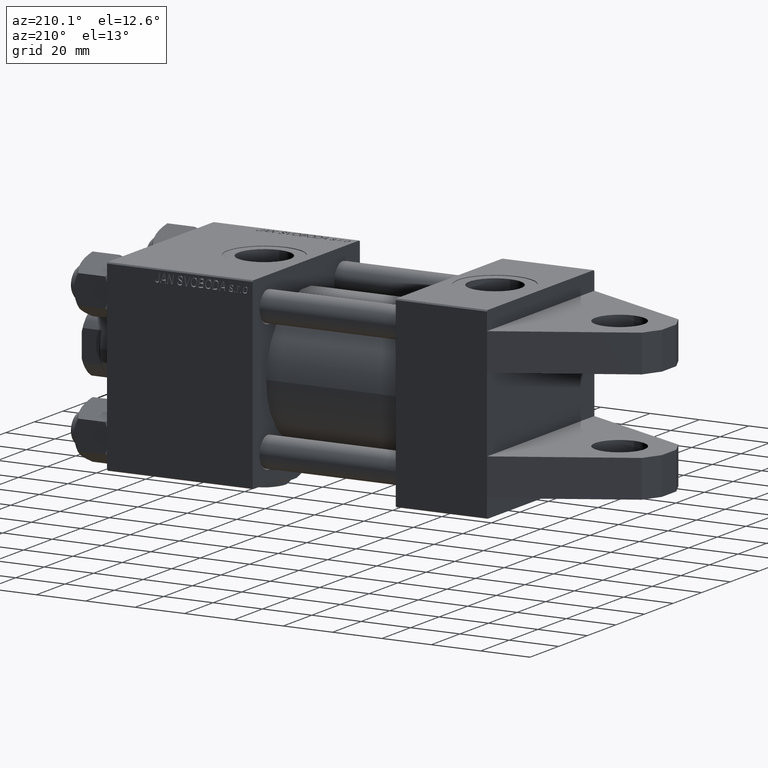
[diagram: clean part render]
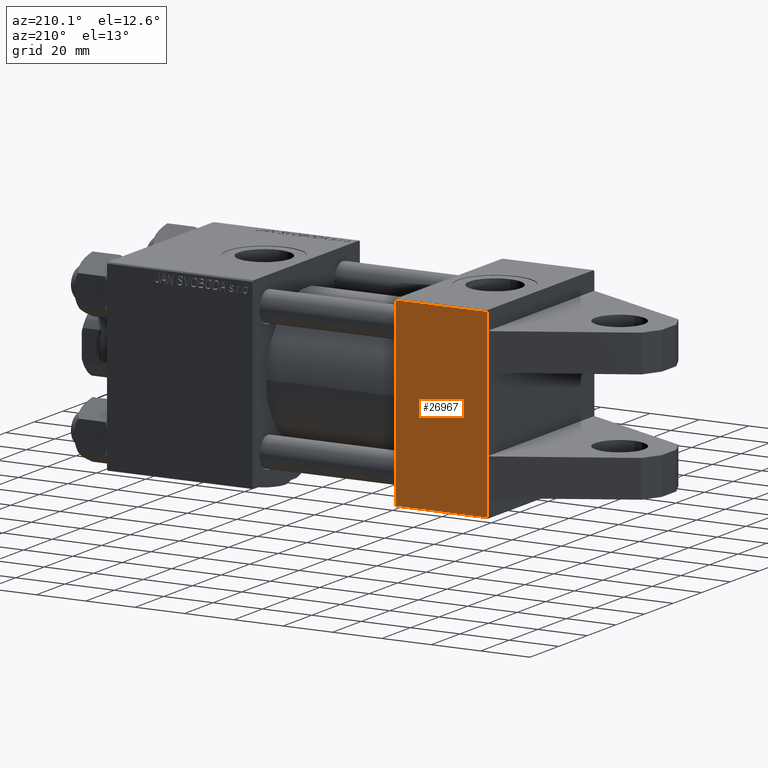
[diagram: same view with one face highlighted and labeled with its STEP entity id]
A machine part, auxiliary view. The second image highlights one B-rep face of the part: STEP entity #26967.
In plain terms, the highlighted planar face has unit normal (0, -1, -0).
Its self-contained STEP definition (entity closure, byte-faithful):
#373 = VERTEX_POINT ( 'NONE', #3078 ) ;
#581 = LINE ( 'NONE', #19837, #16439 ) ;
#721 = VECTOR ( 'NONE', #30846, 1000.000000000000000 ) ;
#1472 = VERTEX_POINT ( 'NONE', #13120 ) ;
#2016 = VECTOR ( 'NONE', #3943, 1000.000000000000000 ) ;
#2396 = CARTESIAN_POINT ( 'NONE',  ( 37.00000000000000000, 36.99999999999999289, 37.50000000000000000 ) ) ;
#2786 = FACE_OUTER_BOUND ( 'NONE', #35305, .T. ) ;
#3073 = ORIENTED_EDGE ( 'NONE', *, *, #11993, .F. ) ;
#3078 = CARTESIAN_POINT ( 'NONE',  ( 0.000000000000000000, 15.00000000000000000, 37.50000000000000000 ) ) ;
#3253 = ORIENTED_EDGE ( 'NONE', *, *, #15975, .T. ) ;
#3943 = DIRECTION ( 'NONE',  ( 0.000000000000000000, -1.000000000000000000, -9.251858538542971581E-17 ) ) ;
#4051 = CARTESIAN_POINT ( 'NONE',  ( 0.000000000000000000, -30.00000000000001421, 37.49999999999999289 ) ) ;
#4181 = AXIS2_PLACEMENT_3D ( 'NONE', #14259, #22550, #6438 ) ;
#5071 = CARTESIAN_POINT ( 'NONE',  ( 37.00000000000000000, 37.49999999999999289, 37.50000000000000000 ) ) ;
#6437 = CARTESIAN_POINT ( 'NONE',  ( 0.000000000000000000, -15.00000000000000000, 37.49999999999999289 ) ) ;
#6438 = DIRECTION ( 'NONE',  ( 0.000000000000000000, 1.000000000000000000, 9.251858538542971581E-17 ) ) ;
#6629 = CARTESIAN_POINT ( 'NONE',  ( 0.000000000000000000, 30.00000000000000000, 37.50000000000000000 ) ) ;
#7176 = LINE ( 'NONE', #23034, #721 ) ;
#7193 = LINE ( 'NONE', #14495, #8544 ) ;
#7421 = VERTEX_POINT ( 'NONE', #6629 ) ;
#8362 = LINE ( 'NONE', #12783, #2016 ) ;
#8544 = VECTOR ( 'NONE', #38656, 1000.000000000000000 ) ;
#9182 = DIRECTION ( 'NONE',  ( -1.000000000000000000, 0.000000000000000000, 0.000000000000000000 ) ) ;
#11993 = EDGE_CURVE ( 'NONE', #39459, #14715, #581, .T. ) ;
#12219 = VECTOR ( 'NONE', #40647, 1000.000000000000000 ) ;
#12783 = CARTESIAN_POINT ( 'NONE',  ( 0.000000000000000000, 37.49999999999999289, 37.50000000000000000 ) ) ;
#13079 = LINE ( 'NONE', #44765, #42329 ) ;
#13120 = CARTESIAN_POINT ( 'NONE',  ( 0.000000000000000000, 36.99999999999999289, 37.50000000000000000 ) ) ;
#14026 = VERTEX_POINT ( 'NONE', #2396 ) ;
#14259 = CARTESIAN_POINT ( 'NONE',  ( 37.00000000000000000, 37.49999999999999289, 37.50000000000000000 ) ) ;
#14495 = CARTESIAN_POINT ( 'NONE',  ( 0.000000000000000000, 37.49999999999999289, 37.50000000000000000 ) ) ;
#14715 = VERTEX_POINT ( 'NONE', #6437 ) ;
#14993 = CARTESIAN_POINT ( 'NONE',  ( 0.000000000000000000, -37.00000000000000711, 37.49999999999999289 ) ) ;
#15975 = EDGE_CURVE ( 'NONE', #14026, #1472, #13079, .T. ) ;
#16338 = CARTESIAN_POINT ( 'NONE',  ( 37.00000000000000000, -37.00000000000000711, 37.49999999999999289 ) ) ;
#16439 = VECTOR ( 'NONE', #44237, 1000.000000000000000 ) ;
#17548 = EDGE_CURVE ( 'NONE', #1472, #7421, #7193, .T. ) ;
#18299 = VERTEX_POINT ( 'NONE', #14993 ) ;
#18979 = VERTEX_POINT ( 'NONE', #16338 ) ;
#19837 = CARTESIAN_POINT ( 'NONE',  ( 0.000000000000000000, -30.00000000000000000, 37.49999999999999289 ) ) ;
#20556 = EDGE_CURVE ( 'NONE', #39459, #18299, #8362, .T. ) ;
#20639 = CARTESIAN_POINT ( 'NONE',  ( 0.000000000000000000, 37.49999999999999289, 37.50000000000000000 ) ) ;
#20672 = DIRECTION ( 'NONE',  ( 0.000000000000000000, -1.000000000000000000, -9.251858538542971581E-17 ) ) ;
#22550 = DIRECTION ( 'NONE',  ( 0.000000000000000000, 9.251858538542971581E-17, -1.000000000000000000 ) ) ;
#23034 = CARTESIAN_POINT ( 'NONE',  ( 0.000000000000000000, 30.00000000000000000, 37.49999999999999289 ) ) ;
#23969 = ORIENTED_EDGE ( 'NONE', *, *, #34655, .T. ) ;
#25933 = ORIENTED_EDGE ( 'NONE', *, *, #33896, .T. ) ;
#26967 = ADVANCED_FACE ( 'NONE', ( #2786 ), #49829, .F. ) ;
#29175 = ORIENTED_EDGE ( 'NONE', *, *, #17548, .T. ) ;
#30846 = DIRECTION ( 'NONE',  ( -0.000000000000000000, -1.000000000000000000, -0.000000000000000000 ) ) ;
#31517 = ORIENTED_EDGE ( 'NONE', *, *, #20556, .T. ) ;
#33373 = LINE ( 'NONE', #41659, #35452 ) ;
#33896 = EDGE_CURVE ( 'NONE', #18299, #18979, #33373, .T. ) ;
#34655 = EDGE_CURVE ( 'NONE', #373, #14715, #40381, .T. ) ;
#35305 = EDGE_LOOP ( 'NONE', ( #29175, #47783, #23969, #3073, #31517, #25933, #41436, #3253 ) ) ;
#35452 = VECTOR ( 'NONE', #45540, 1000.000000000000000 ) ;
#38656 = DIRECTION ( 'NONE',  ( 0.000000000000000000, -1.000000000000000000, -9.251858538542971581E-17 ) ) ;
#39459 = VERTEX_POINT ( 'NONE', #4051 ) ;
#40381 = LINE ( 'NONE', #20639, #12219 ) ;
#40647 = DIRECTION ( 'NONE',  ( 0.000000000000000000, -1.000000000000000000, -9.251858538542971581E-17 ) ) ;
#41436 = ORIENTED_EDGE ( 'NONE', *, *, #50457, .F. ) ;
#41659 = CARTESIAN_POINT ( 'NONE',  ( 37.00000000000000000, -37.00000000000000711, 37.49999999999999289 ) ) ;
#42329 = VECTOR ( 'NONE', #9182, 1000.000000000000000 ) ;
#43854 = EDGE_CURVE ( 'NONE', #7421, #373, #7176, .T. ) ;
#44237 = DIRECTION ( 'NONE',  ( -0.000000000000000000, 1.000000000000000000, -0.000000000000000000 ) ) ;
#44765 = CARTESIAN_POINT ( 'NONE',  ( 0.000000000000000000, 36.99999999999999289, 37.50000000000000000 ) ) ;
#45540 = DIRECTION ( 'NONE',  ( 1.000000000000000000, 0.000000000000000000, 0.000000000000000000 ) ) ;
#47783 = ORIENTED_EDGE ( 'NONE', *, *, #43854, .T. ) ;
#48437 = LINE ( 'NONE', #5071, #48970 ) ;
#48970 = VECTOR ( 'NONE', #20672, 1000.000000000000000 ) ;
#49829 = PLANE ( 'NONE',  #4181 ) ;
#50457 = EDGE_CURVE ( 'NONE', #14026, #18979, #48437, .T. ) ;